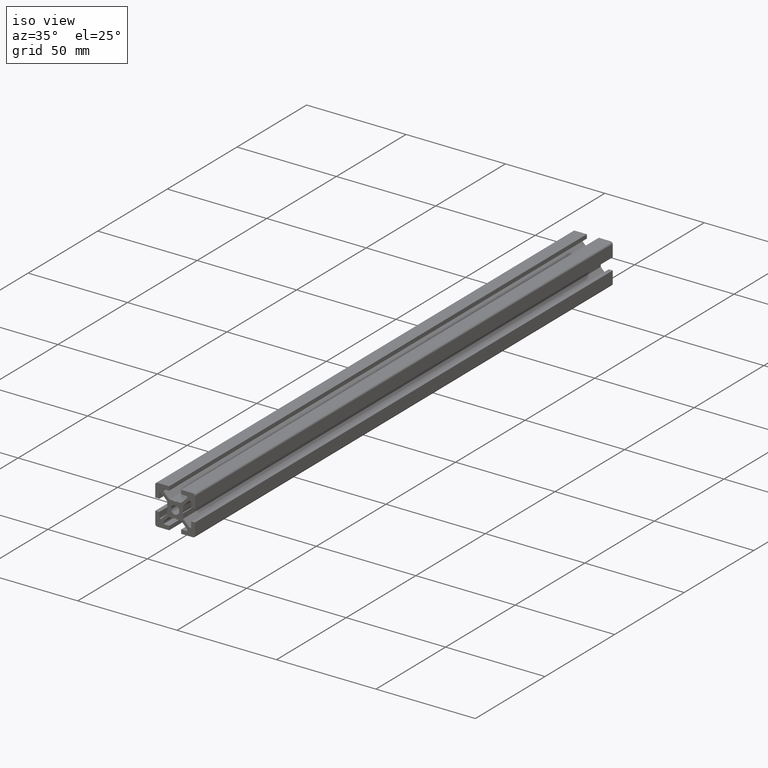
[diagram: clean part render]
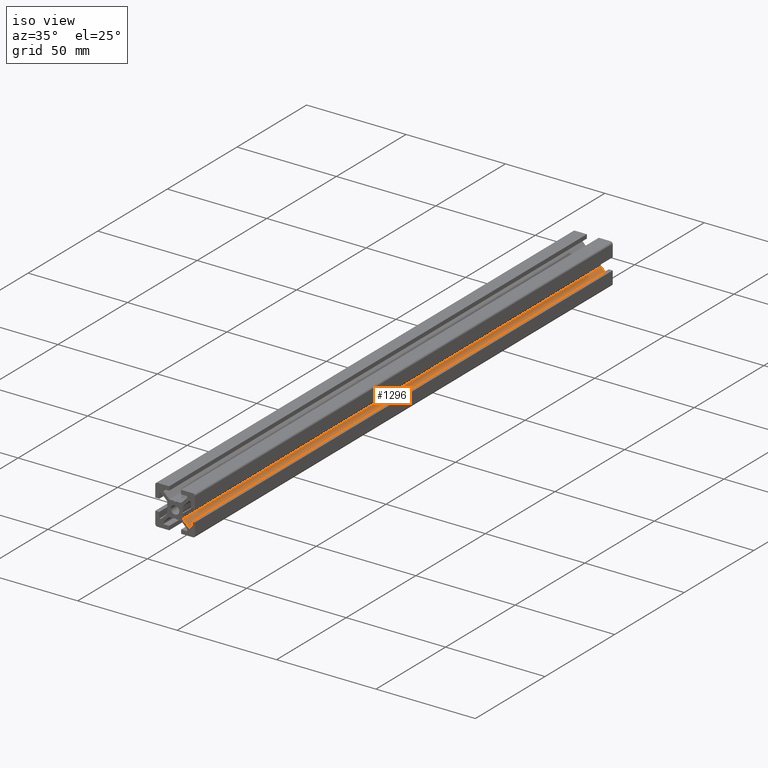
[diagram: same view with one face highlighted and labeled with its STEP entity id]
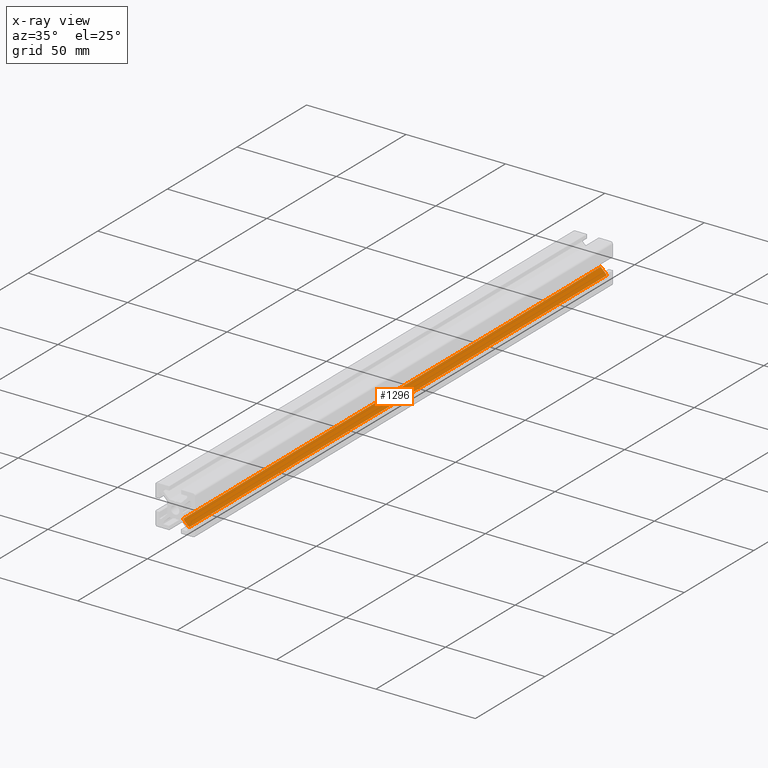
[diagram: x-ray of the same camera — body ghosted, the highlighted face saturated]
A machine part, iso view. The second image highlights one B-rep face of the part: STEP entity #1296.
The next image is the same camera in x-ray: the body ghosted, the highlighted face saturated — about 0% of this face is hidden behind the body in this view.
In plain terms, the highlighted planar face has unit normal (0.7071, 0, 0.7071).
Its self-contained STEP definition (entity closure, byte-faithful):
#83=FACE_OUTER_BOUND('',#147,.T.);
#147=EDGE_LOOP('',(#1100,#1101,#1102,#1103));
#195=LINE('',#1787,#368);
#327=LINE('',#2065,#500);
#329=LINE('',#2069,#502);
#330=LINE('',#2070,#503);
#368=VECTOR('',#1432,10.);
#500=VECTOR('',#1690,1000.);
#502=VECTOR('',#1694,1000.);
#503=VECTOR('',#1695,1000.);
#543=VERTEX_POINT('',#1784);
#544=VERTEX_POINT('',#1786);
#627=VERTEX_POINT('',#2064);
#628=VERTEX_POINT('',#2068);
#665=EDGE_CURVE('',#543,#544,#195,.T.);
#804=EDGE_CURVE('',#544,#627,#327,.T.);
#806=EDGE_CURVE('',#543,#628,#329,.T.);
#807=EDGE_CURVE('',#627,#628,#330,.T.);
#1100=ORIENTED_EDGE('',*,*,#806,.T.);
#1101=ORIENTED_EDGE('',*,*,#807,.F.);
#1102=ORIENTED_EDGE('',*,*,#804,.F.);
#1103=ORIENTED_EDGE('',*,*,#665,.F.);
#1234=PLANE('',#1383);
#1296=ADVANCED_FACE('',(#83),#1234,.T.);
#1383=AXIS2_PLACEMENT_3D('',#2067,#1692,#1693);
#1432=DIRECTION('',(-0.707106781186548,-0.707106781186547,0.));
#1690=DIRECTION('',(0.,0.,1.));
#1692=DIRECTION('center_axis',(0.707106781186547,-0.707106781186548,0.));
#1693=DIRECTION('ref_axis',(0.707106781186548,0.707106781186547,0.));
#1694=DIRECTION('',(0.,0.,1.));
#1695=DIRECTION('',(0.707106781186548,0.707106781186547,0.));
#1784=CARTESIAN_POINT('',(7.06066017177983,-1994.,-2280.00000000014));
#1786=CARTESIAN_POINT('',(4.,-1997.06066017178,-2280.00000000014));
#1787=CARTESIAN_POINT('',(-2.23483495705505,-2003.29549512883,-2280.00000000014));
#2064=CARTESIAN_POINT('',(4.,-1997.06066017178,-1980.00000000014));
#2065=CARTESIAN_POINT('',(4.,-1997.06066017178,-5980.00000000014));
#2067=CARTESIAN_POINT('Origin',(4.,-1997.06066017178,-5980.00000000014));
#2068=CARTESIAN_POINT('',(7.06066017177983,-1994.,-1980.00000000014));
#2069=CARTESIAN_POINT('',(7.06066017177983,-1994.,-5980.00000000014));
#2070=CARTESIAN_POINT('',(4.,-1997.06066017178,-1980.00000000014));